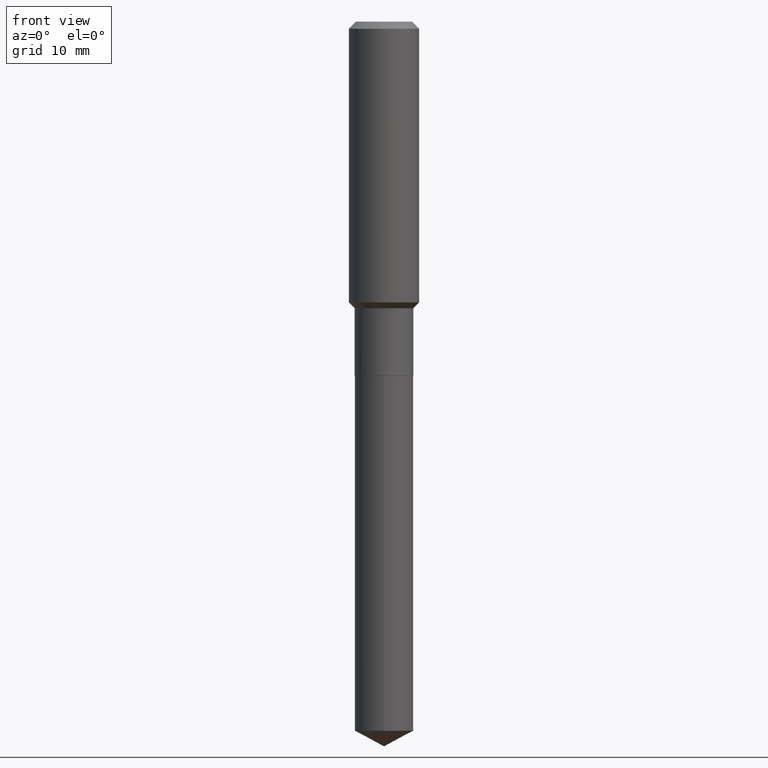
[diagram: clean part render]
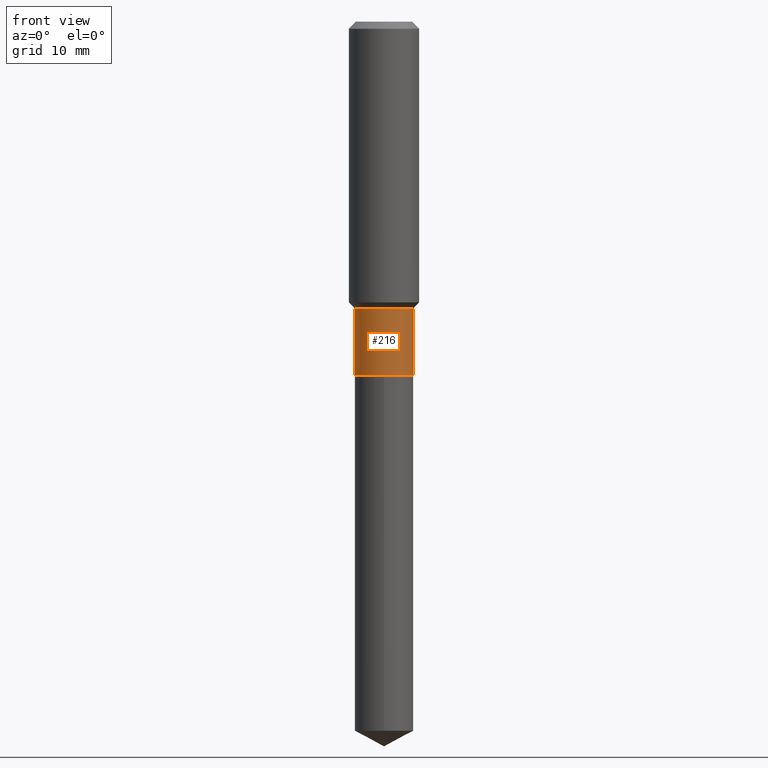
[diagram: same view with one face highlighted and labeled with its STEP entity id]
A machine part, front view. The second image highlights one B-rep face of the part: STEP entity #216.
In plain terms, the highlighted cylindrical surface (edge-blend (fillet) strip) has radius 4.1669 mm, axis along (-0, 0, 1).
Its self-contained STEP definition (entity closure, byte-faithful):
#2 = CARTESIAN_POINT ( 'NONE',  ( 3.922042871359721268E-29, -5.599637771236635728E-15, -1.603799999999999670 ) ) ;
#13 = VERTEX_POINT ( 'NONE', #390 ) ;
#19 = VERTEX_POINT ( 'NONE', #200 ) ;
#46 = VERTEX_POINT ( 'NONE', #120 ) ;
#80 = ORIENTED_EDGE ( 'NONE', *, *, #374, .T. ) ;
#81 = EDGE_CURVE ( 'NONE', #13, #46, #203, .T. ) ;
#88 = CYLINDRICAL_SURFACE ( 'NONE', #102, 0.1640500000000000014 ) ;
#89 = CIRCLE ( 'NONE', #162, 0.1640500000000000291 ) ;
#99 = AXIS2_PLACEMENT_3D ( 'NONE', #2, #111, #426 ) ;
#102 = AXIS2_PLACEMENT_3D ( 'NONE', #368, #255, #218 ) ;
#111 = DIRECTION ( 'NONE',  ( -2.445468806185136597E-29, 3.491481338843145583E-15, 1.000000000000000000 ) ) ;
#120 = CARTESIAN_POINT ( 'NONE',  ( 0.1640499999999999459, -6.745192798511067391E-15, -1.603799999999999670 ) ) ;
#134 = VECTOR ( 'NONE', #291, 39.37007874015748143 ) ;
#148 = VECTOR ( 'NONE', #417, 39.37007874015748143 ) ;
#156 = EDGE_LOOP ( 'NONE', ( #420, #80, #194, #359 ) ) ;
#162 = AXIS2_PLACEMENT_3D ( 'NONE', #376, #450, #261 ) ;
#173 = CARTESIAN_POINT ( 'NONE',  ( -0.1640500000000000014, 1.165645358014444365E-15, -8.069513015563172164E-30 ) ) ;
#194 = ORIENTED_EDGE ( 'NONE', *, *, #319, .T. ) ;
#200 = CARTESIAN_POINT ( 'NONE',  ( 0.1640500000000000291, -8.060782966987165334E-15, -1.980599999999999694 ) ) ;
#203 = CIRCLE ( 'NONE', #99, 0.1640499999999999459 ) ;
#216 = ADVANCED_FACE ( 'NONE', ( #366 ), #88, .T. ) ;
#218 = DIRECTION ( 'NONE',  ( 1.000000000000000000, -6.982962677686266711E-15, 4.876176775795935232E-29 ) ) ;
#234 = EDGE_CURVE ( 'NONE', #389, #13, #288, .T. ) ;
#255 = DIRECTION ( 'NONE',  ( -2.445468806185136597E-29, 3.491481338843145583E-15, 1.000000000000000000 ) ) ;
#261 = DIRECTION ( 'NONE',  ( 1.000000000000000000, -6.982962677686269077E-15, 0.000000000000000000 ) ) ;
#288 = LINE ( 'NONE', #173, #134 ) ;
#291 = DIRECTION ( 'NONE',  ( -2.445468806185136877E-29, 3.491481338843145188E-15, 1.000000000000000000 ) ) ;
#319 = EDGE_CURVE ( 'NONE', #19, #46, #453, .T. ) ;
#359 = ORIENTED_EDGE ( 'NONE', *, *, #81, .F. ) ;
#366 = FACE_OUTER_BOUND ( 'NONE', #156, .T. ) ;
#368 = CARTESIAN_POINT ( 'NONE',  ( 0.000000000000000000, 0.000000000000000000, 0.000000000000000000 ) ) ;
#374 = EDGE_CURVE ( 'NONE', #389, #19, #89, .T. ) ;
#376 = CARTESIAN_POINT ( 'NONE',  ( 4.843495517530280568E-29, -6.915227939712732882E-15, -1.980599999999999694 ) ) ;
#389 = VERTEX_POINT ( 'NONE', #415 ) ;
#390 = CARTESIAN_POINT ( 'NONE',  ( -0.1640499999999999459, -5.091787497460239743E-15, -1.603799999999999670 ) ) ;
#415 = CARTESIAN_POINT ( 'NONE',  ( -0.1640500000000000291, -5.091787497460239743E-15, -1.980599999999999694 ) ) ;
#417 = DIRECTION ( 'NONE',  ( -2.445468806185136877E-29, 3.491481338843145188E-15, 1.000000000000000000 ) ) ;
#420 = ORIENTED_EDGE ( 'NONE', *, *, #234, .F. ) ;
#426 = DIRECTION ( 'NONE',  ( 1.000000000000000000, -6.982962677686266711E-15, 0.000000000000000000 ) ) ;
#450 = DIRECTION ( 'NONE',  ( -2.445468806185136597E-29, 3.491481338843145583E-15, 1.000000000000000000 ) ) ;
#453 = LINE ( 'NONE', #481, #148 ) ;
#481 = CARTESIAN_POINT ( 'NONE',  ( 0.1640500000000000014, -1.145555027274432057E-15, 7.999368000693231542E-30 ) ) ;